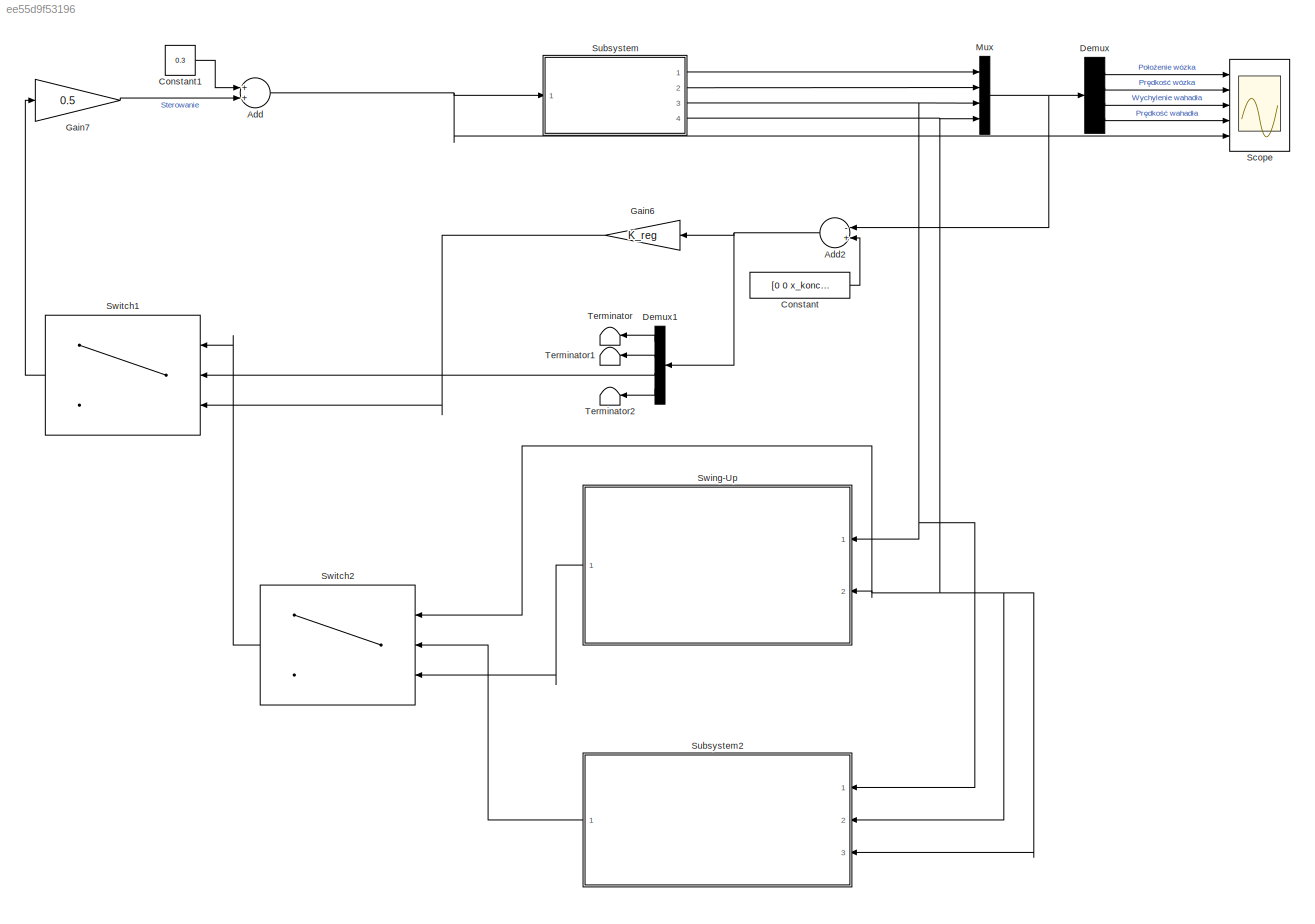
MODEL slx_ee55d9f53196
KIND model
CONFIG AbsTol = auto
CONFIG EnableMultiTasking = off
CONFIG FixedStep = auto
CONFIG MaxStep = auto
CONFIG MinStep = auto
CONFIG RelTol = 1e-3
CONFIG SampleTimeConstraint = Unconstrained
CONFIG Solver = ode45
CONFIG SolverName = ode45
CONFIG StartTime = 0.0
CONFIG StopTime = 15
BLOCK [Sum] Add
  InputSameDT = off
  OutDataTypeStr = Inherit: Inherit via internal rule
  Ports = [2, 1]
  SaturateOnIntegerOverflow = off
BLOCK [Sum] Add2
  InputSameDT = off
  Inputs = -+
  OutDataTypeStr = Inherit: Inherit via internal rule
  Ports = [2, 1]
  SaturateOnIntegerOverflow = off
BLOCK [Constant] Constant
  Value = [0 0 x_konc 0]
BLOCK [Constant] Constant1
  Value = 0.3
BLOCK [Demux] Demux
  DisplayOption = bar
  Ports = [1, 4]
BLOCK [Demux] Demux1
  DisplayOption = bar
  Ports = [1, 4]
BLOCK [Gain] Gain6
  Gain = K_reg
  Multiplication = Matrix(K*u)
  OutDataTypeStr = Inherit: Inherit via internal rule
  ParamDataTypeStr = Inherit: Inherit via internal rule
  SaturateOnIntegerOverflow = off
BLOCK [Gain] Gain7
  Gain = 0.5
  OutDataTypeStr = Inherit: Inherit via internal rule
  ParamDataTypeStr = Inherit: Inherit via internal rule
  SaturateOnIntegerOverflow = off
BLOCK [Mux] Mux
  DisplayOption = bar
  Ports = [4, 1]
BLOCK [Scope] Scope
  Floating = off
  NumInputPorts = 5
  Ports = [5]
  ScopeSpecificationString = Simulink.scopes.TimeScopeBlockCfg('CurrentConfiguration', extmgr.ConfigurationSet(extmgr.Configuration('Core','General UI',true,'FigureColor',[0.156862745098039 0.156862745098039 0.156862745098039]),extmgr.Configuration('Core','Source UI',true),extmgr.Configuration('Sources','WiredSimulink',true,'DataLoggingSaveFormat','StructureWithTime','DataLoggingDecimation','1','DataLoggingDecimateData',true)...<+8670ch>
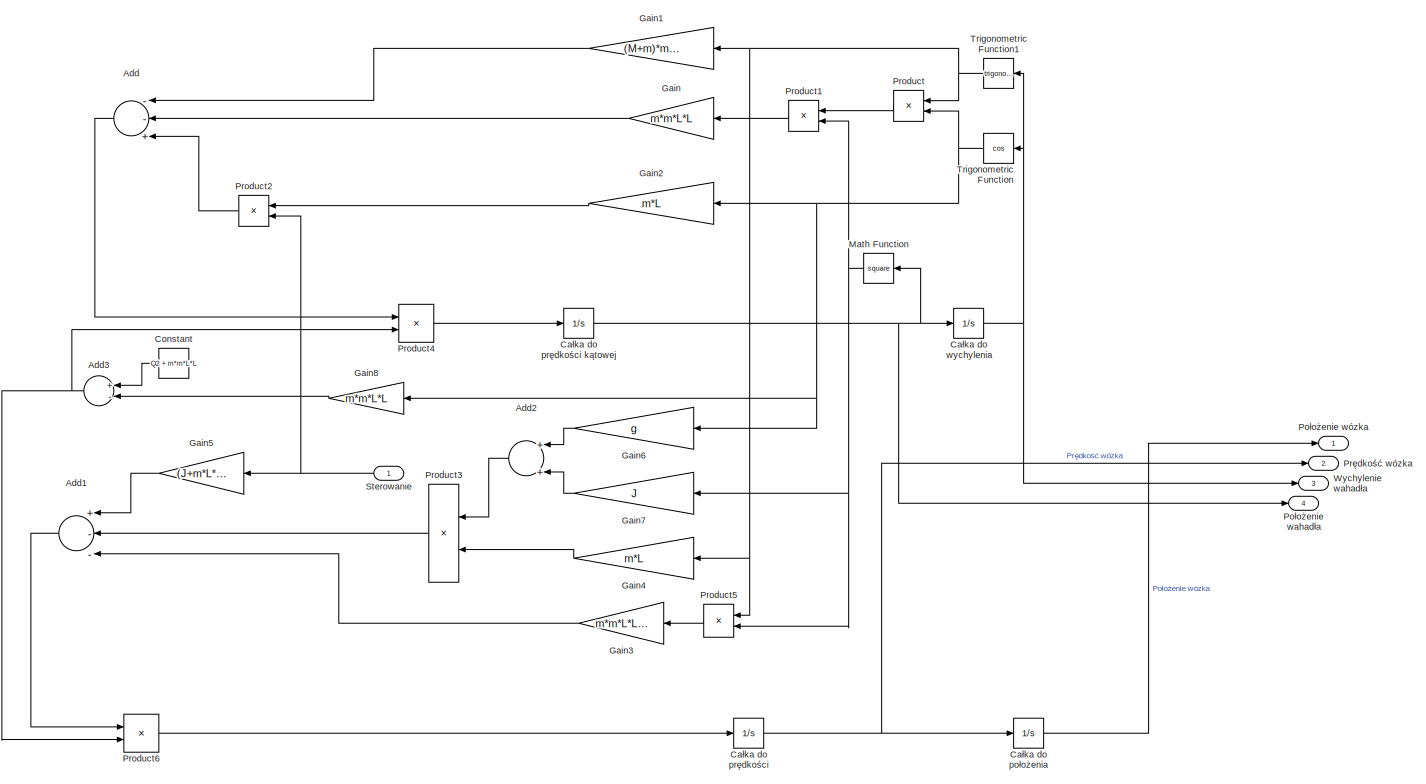
[diagram: Subsystem - part 1/1, most of the canvas]
BLOCK [SubSystem] Subsystem
  Ports = [1, 4]
  RequestExecContextInheritance = off
BLOCK [Sum] Subsystem/Add
  InputSameDT = off
  Inputs = --+
  OutDataTypeStr = Inherit: Inherit via internal rule
  Ports = [3, 1]
  SaturateOnIntegerOverflow = off
BLOCK [Sum] Subsystem/Add1
  InputSameDT = off
  Inputs = +--
  OutDataTypeStr = Inherit: Inherit via internal rule
  Ports = [3, 1]
  SaturateOnIntegerOverflow = off
BLOCK [Sum] Subsystem/Add2
  InputSameDT = off
  OutDataTypeStr = Inherit: Inherit via internal rule
  Ports = [2, 1]
  SaturateOnIntegerOverflow = off
BLOCK [Sum] Subsystem/Add3
  InputSameDT = off
  Inputs = +-
  OutDataTypeStr = Inherit: Inherit via internal rule
  Ports = [2, 1]
  SaturateOnIntegerOverflow = off
BLOCK [Integrator] Subsystem/Całka do położenia
  Ports = [1, 1]
BLOCK [Integrator] Subsystem/Całka do prędkości
  Ports = [1, 1]
BLOCK [Integrator] Subsystem/Całka do prędkości kątowej
  Ports = [1, 1]
BLOCK [Integrator] Subsystem/Całka do wychylenia
  InitialCondition = x_pocz
  Ports = [1, 1]
BLOCK [Constant] Subsystem/Constant
  Value = Q2 + m*m*L*L
BLOCK [Gain] Subsystem/Gain
  Gain = m*m*L*L
  OutDataTypeStr = Inherit: Inherit via internal rule
  ParamDataTypeStr = Inherit: Inherit via internal rule
  SaturateOnIntegerOverflow = off
BLOCK [Gain] Subsystem/Gain1
  Gain = (M+m)*m*g*L
  OutDataTypeStr = Inherit: Inherit via internal rule
  ParamDataTypeStr = Inherit: Inherit via internal rule
  SaturateOnIntegerOverflow = off
BLOCK [Gain] Subsystem/Gain2
  Gain = m*L
  OutDataTypeStr = Inherit: Inherit via internal rule
  ParamDataTypeStr = Inherit: Inherit via internal rule
  SaturateOnIntegerOverflow = off
BLOCK [Gain] Subsystem/Gain3
  Gain = m*m*L*L*L
  OutDataTypeStr = Inherit: Inherit via internal rule
  ParamDataTypeStr = Inherit: Inherit via internal rule
  SaturateOnIntegerOverflow = off
BLOCK [Gain] Subsystem/Gain4
  Gain = m*L
  OutDataTypeStr = Inherit: Inherit via internal rule
  ParamDataTypeStr = Inherit: Inherit via internal rule
  SaturateOnIntegerOverflow = off
BLOCK [Gain] Subsystem/Gain5
  Gain = (J+m*L*L)
  OutDataTypeStr = Inherit: Inherit via internal rule
  ParamDataTypeStr = Inherit: Inherit via internal rule
  SaturateOnIntegerOverflow = off
BLOCK [Gain] Subsystem/Gain6
  Gain = g
  OutDataTypeStr = Inherit: Inherit via internal rule
  ParamDataTypeStr = Inherit: Inherit via internal rule
  SaturateOnIntegerOverflow = off
BLOCK [Gain] Subsystem/Gain7
  Gain = J
  OutDataTypeStr = Inherit: Inherit via internal rule
  ParamDataTypeStr = Inherit: Inherit via internal rule
  SaturateOnIntegerOverflow = off
BLOCK [Gain] Subsystem/Gain8
  Gain = m*m*L*L
  OutDataTypeStr = Inherit: Inherit via internal rule
  ParamDataTypeStr = Inherit: Inherit via internal rule
  SaturateOnIntegerOverflow = off
BLOCK [Math] Subsystem/Math Function
  Operator = square
  Ports = [1, 1]
BLOCK [Outport] Subsystem/Położenie wahadła
  IconDisplay = Port number
  Port = 4
BLOCK [Outport] Subsystem/Położenie wózka
  IconDisplay = Port number
BLOCK [Product] Subsystem/Product
  InputSameDT = off
  OutDataTypeStr = Inherit: Inherit via internal rule
  Ports = [2, 1]
  RndMeth = Floor
  SaturateOnIntegerOverflow = off
BLOCK [Product] Subsystem/Product1
  InputSameDT = off
  OutDataTypeStr = Inherit: Inherit via internal rule
  Ports = [2, 1]
  RndMeth = Floor
  SaturateOnIntegerOverflow = off
BLOCK [Product] Subsystem/Product2
  InputSameDT = off
  OutDataTypeStr = Inherit: Inherit via internal rule
  Ports = [2, 1]
  RndMeth = Floor
  SaturateOnIntegerOverflow = off
BLOCK [Product] Subsystem/Product3
  InputSameDT = off
  OutDataTypeStr = Inherit: Inherit via internal rule
  Ports = [2, 1]
  RndMeth = Floor
  SaturateOnIntegerOverflow = off
BLOCK [Product] Subsystem/Product4
  InputSameDT = off
  Inputs = */
  OutDataTypeStr = Inherit: Inherit via internal rule
  Ports = [2, 1]
  RndMeth = Floor
  SaturateOnIntegerOverflow = off
BLOCK [Product] Subsystem/Product5
  InputSameDT = off
  OutDataTypeStr = Inherit: Inherit via internal rule
  Ports = [2, 1]
  RndMeth = Floor
  SaturateOnIntegerOverflow = off
BLOCK [Product] Subsystem/Product6
  InputSameDT = off
  Inputs = */
  OutDataTypeStr = Inherit: Inherit via internal rule
  Ports = [2, 1]
  RndMeth = Floor
  SaturateOnIntegerOverflow = off
BLOCK [Outport] Subsystem/Prędkość wózka
  IconDisplay = Port number
  Port = 2
BLOCK [Inport] Subsystem/Sterowanie
  IconDisplay = Port number
BLOCK [Trigonometry] Subsystem/Trigonometric Function
  Operator = cos
  Ports = [1, 1]
BLOCK [Trigonometry] Subsystem/Trigonometric Function1
  Ports = [1, 1]
BLOCK [Outport] Subsystem/Wychylenie wahadła
  IconDisplay = Port number
  Port = 3
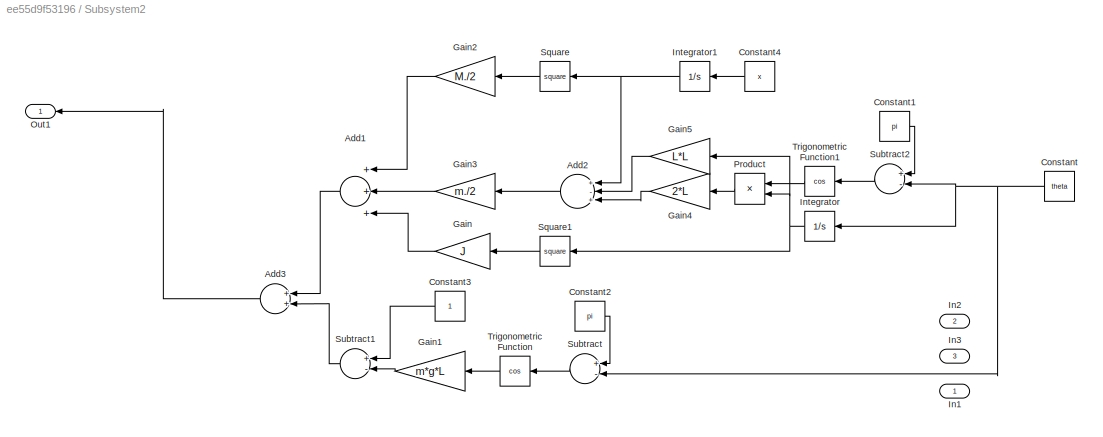
BLOCK [SubSystem] Subsystem2
  Ports = [3, 1]
  RequestExecContextInheritance = off
BLOCK [Sum] Subsystem2/Add1
  InputSameDT = off
  Inputs = +++
  OutDataTypeStr = Inherit: Inherit via internal rule
  Ports = [3, 1]
  SaturateOnIntegerOverflow = off
BLOCK [Sum] Subsystem2/Add2
  InputSameDT = off
  Inputs = +-+
  OutDataTypeStr = Inherit: Inherit via internal rule
  Ports = [3, 1]
  SaturateOnIntegerOverflow = off
BLOCK [Sum] Subsystem2/Add3
  InputSameDT = off
  OutDataTypeStr = Inherit: Inherit via internal rule
  Ports = [2, 1]
  SaturateOnIntegerOverflow = off
BLOCK [Constant] Subsystem2/Constant
  Value = theta
BLOCK [Constant] Subsystem2/Constant1
  Value = pi
BLOCK [Constant] Subsystem2/Constant2
  Value = pi
BLOCK [Constant] Subsystem2/Constant3
BLOCK [Constant] Subsystem2/Constant4
  Value = x
BLOCK [Gain] Subsystem2/Gain
  Gain = J
  OutDataTypeStr = Inherit: Inherit via internal rule
  ParamDataTypeStr = Inherit: Inherit via internal rule
  SaturateOnIntegerOverflow = off
BLOCK [Gain] Subsystem2/Gain1
  Gain = m*g*L
  OutDataTypeStr = Inherit: Inherit via internal rule
  ParamDataTypeStr = Inherit: Inherit via internal rule
  SaturateOnIntegerOverflow = off
BLOCK [Gain] Subsystem2/Gain2
  Gain = M./2
  OutDataTypeStr = Inherit: Inherit via internal rule
  ParamDataTypeStr = Inherit: Inherit via internal rule
  SaturateOnIntegerOverflow = off
BLOCK [Gain] Subsystem2/Gain3
  Gain = m./2
  OutDataTypeStr = Inherit: Inherit via internal rule
  ParamDataTypeStr = Inherit: Inherit via internal rule
  SaturateOnIntegerOverflow = off
BLOCK [Gain] Subsystem2/Gain4
  Gain = 2*L
  OutDataTypeStr = Inherit: Inherit via internal rule
  ParamDataTypeStr = Inherit: Inherit via internal rule
  SaturateOnIntegerOverflow = off
BLOCK [Gain] Subsystem2/Gain5
  Gain = L*L
  OutDataTypeStr = Inherit: Inherit via internal rule
  ParamDataTypeStr = Inherit: Inherit via internal rule
  SaturateOnIntegerOverflow = off
BLOCK [Inport] Subsystem2/In1
  IconDisplay = Port number
BLOCK [Inport] Subsystem2/In2
  IconDisplay = Port number
  Port = 2
BLOCK [Inport] Subsystem2/In3
  IconDisplay = Port number
  Port = 3
BLOCK [Integrator] Subsystem2/Integrator
  Ports = [1, 1]
BLOCK [Integrator] Subsystem2/Integrator1
  Ports = [1, 1]
BLOCK [Outport] Subsystem2/Out1
  IconDisplay = Port number
BLOCK [Product] Subsystem2/Product
  InputSameDT = off
  OutDataTypeStr = Inherit: Inherit via internal rule
  Ports = [2, 1]
  RndMeth = Floor
  SaturateOnIntegerOverflow = off
BLOCK [Math] Subsystem2/Square
  Operator = square
  Ports = [1, 1]
  SignedPower = off
BLOCK [Math] Subsystem2/Square1
  Operator = square
  Ports = [1, 1]
  SignedPower = off
BLOCK [Sum] Subsystem2/Subtract
  InputSameDT = off
  Inputs = +-
  OutDataTypeStr = Inherit: Inherit via internal rule
  Ports = [2, 1]
  SaturateOnIntegerOverflow = off
BLOCK [Sum] Subsystem2/Subtract1
  InputSameDT = off
  Inputs = +-
  OutDataTypeStr = Inherit: Inherit via internal rule
  Ports = [2, 1]
  SaturateOnIntegerOverflow = off
BLOCK [Sum] Subsystem2/Subtract2
  InputSameDT = off
  Inputs = +-
  OutDataTypeStr = Inherit: Inherit via internal rule
  Ports = [2, 1]
  SaturateOnIntegerOverflow = off
BLOCK [Trigonometry] Subsystem2/Trigonometric Function
  Operator = cos
  Ports = [1, 1]
BLOCK [Trigonometry] Subsystem2/Trigonometric Function1
  Operator = cos
  Ports = [1, 1]
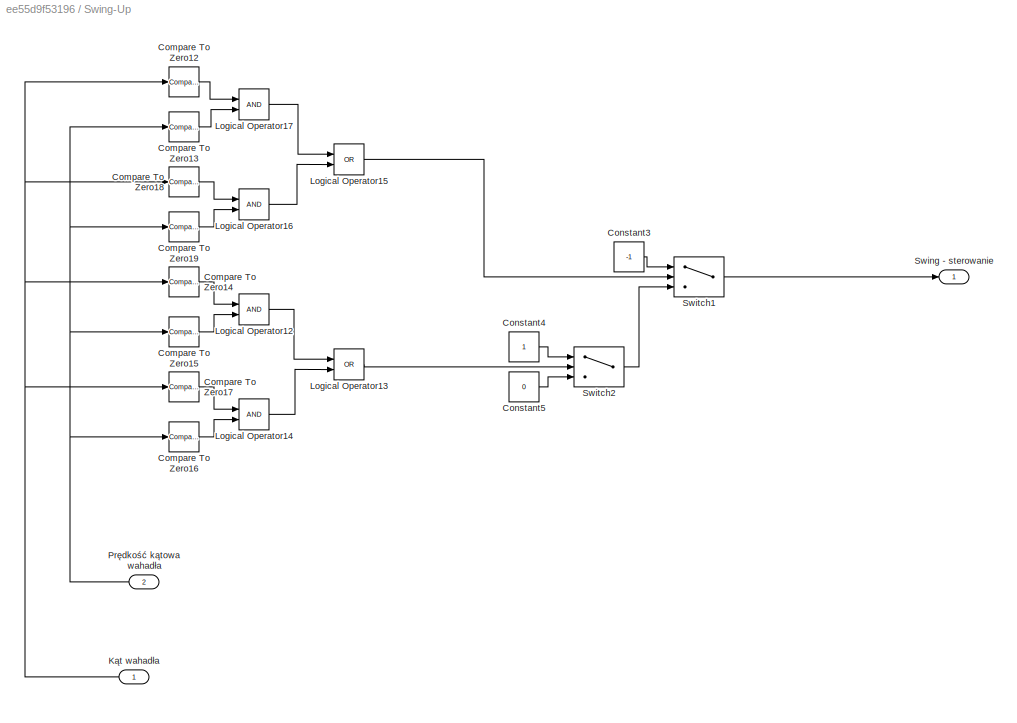
BLOCK [SubSystem] Swing-Up
  Ports = [2, 1]
  RequestExecContextInheritance = off
BLOCK [Reference] Swing-Up/Compare To Zero12  REF=simulink/Logic and Bit
Operations/Compare
To Zero
  Ports = [1, 1]
  SourceBlock = simulink/Logic and Bit\nOperations/Compare\nTo Zero
  SourceProductBaseCode = SL
  SourceProductName = Simulink
  SourceType = Compare To Zero
BLOCK [Reference] Swing-Up/Compare To Zero13  REF=simulink/Logic and Bit
Operations/Compare
To Zero
  Ports = [1, 1]
  SourceBlock = simulink/Logic and Bit\nOperations/Compare\nTo Zero
  SourceProductBaseCode = SL
  SourceProductName = Simulink
  SourceType = Compare To Zero
BLOCK [Reference] Swing-Up/Compare To Zero14  REF=simulink/Logic and Bit
Operations/Compare
To Zero
  Ports = [1, 1]
  SourceBlock = simulink/Logic and Bit\nOperations/Compare\nTo Zero
  SourceProductBaseCode = SL
  SourceProductName = Simulink
  SourceType = Compare To Zero
BLOCK [Reference] Swing-Up/Compare To Zero15  REF=simulink/Logic and Bit
Operations/Compare
To Zero
  Ports = [1, 1]
  SourceBlock = simulink/Logic and Bit\nOperations/Compare\nTo Zero
  SourceProductBaseCode = SL
  SourceProductName = Simulink
  SourceType = Compare To Zero
BLOCK [Reference] Swing-Up/Compare To Zero16  REF=simulink/Logic and Bit
Operations/Compare
To Zero
  Ports = [1, 1]
  SourceBlock = simulink/Logic and Bit\nOperations/Compare\nTo Zero
  SourceProductBaseCode = SL
  SourceProductName = Simulink
  SourceType = Compare To Zero
BLOCK [Reference] Swing-Up/Compare To Zero17  REF=simulink/Logic and Bit
Operations/Compare
To Zero
  Ports = [1, 1]
  SourceBlock = simulink/Logic and Bit\nOperations/Compare\nTo Zero
  SourceProductBaseCode = SL
  SourceProductName = Simulink
  SourceType = Compare To Zero
BLOCK [Reference] Swing-Up/Compare To Zero18  REF=simulink/Logic and Bit
Operations/Compare
To Zero
  Ports = [1, 1]
  SourceBlock = simulink/Logic and Bit\nOperations/Compare\nTo Zero
  SourceProductBaseCode = SL
  SourceProductName = Simulink
  SourceType = Compare To Zero
BLOCK [Reference] Swing-Up/Compare To Zero19  REF=simulink/Logic and Bit
Operations/Compare
To Zero
  Ports = [1, 1]
  SourceBlock = simulink/Logic and Bit\nOperations/Compare\nTo Zero
  SourceProductBaseCode = SL
  SourceProductName = Simulink
  SourceType = Compare To Zero
BLOCK [Constant] Swing-Up/Constant3
  Value = -1
BLOCK [Constant] Swing-Up/Constant4
BLOCK [Constant] Swing-Up/Constant5
  Value = 0
BLOCK [Inport] Swing-Up/Kąt wahadła
  IconDisplay = Port number
BLOCK [Logic] Swing-Up/Logical Operator12
  AllPortsSameDT = off
  OutDataTypeStr = boolean
  Ports = [2, 1]
BLOCK [Logic] Swing-Up/Logical Operator13
  AllPortsSameDT = off
  Operator = OR
  OutDataTypeStr = boolean
  Ports = [2, 1]
BLOCK [Logic] Swing-Up/Logical Operator14
  AllPortsSameDT = off
  OutDataTypeStr = boolean
  Ports = [2, 1]
BLOCK [Logic] Swing-Up/Logical Operator15
  AllPortsSameDT = off
  Operator = OR
  OutDataTypeStr = boolean
  Ports = [2, 1]
BLOCK [Logic] Swing-Up/Logical Operator16
  AllPortsSameDT = off
  OutDataTypeStr = boolean
  Ports = [2, 1]
BLOCK [Logic] Swing-Up/Logical Operator17
  AllPortsSameDT = off
  OutDataTypeStr = boolean
  Ports = [2, 1]
BLOCK [Inport] Swing-Up/Prędkość kątowa wahadła
  IconDisplay = Port number
  Port = 2
BLOCK [Outport] Swing-Up/Swing - sterowanie
  IconDisplay = Port number
BLOCK [Switch] Swing-Up/Switch1
  Criteria = u2 > Threshold
  InputSameDT = off
  SaturateOnIntegerOverflow = off
BLOCK [Switch] Swing-Up/Switch2
  Criteria = u2 ~= 0
  InputSameDT = off
  SaturateOnIntegerOverflow = off
BLOCK [Switch] Switch1
  InputSameDT = off
  SaturateOnIntegerOverflow = off
  Threshold = 0.5
BLOCK [Switch] Switch2
  InputSameDT = off
  SaturateOnIntegerOverflow = off
  Threshold = 1.6
BLOCK [Terminator] Terminator
BLOCK [Terminator] Terminator1
BLOCK [Terminator] Terminator2
NET Add2:1 -> Demux1:1, Gain6:1
NET Add:1 -> Scope:5, Subsystem:1
LINE Constant1:1 -> Add:1
LINE Constant:1 -> Add2:2
LINE Demux1:1 -> Terminator:1
LINE Demux1:2 -> Terminator1:1
LINE Demux1:3 -> Switch1:2
LINE Demux1:4 -> Terminator2:1
LINE Demux:1 -> Scope:1
LINE Demux:2 -> Scope:2
LINE Demux:3 -> Scope:3
LINE Demux:4 -> Scope:4
LINE Gain6:1 -> Switch1:3
LINE Gain7:1 -> Add:2
NET Mux:1 -> Add2:1, Demux:1
LINE Subsystem/Add1:1 -> Subsystem/Product6:1
LINE Subsystem/Add2:1 -> Subsystem/Product3:1
NET Subsystem/Add3:1 -> Subsystem/Product4:2, Subsystem/Product6:2
LINE Subsystem/Add:1 -> Subsystem/Product4:1
LINE Subsystem/Całka do położenia:1 -> Subsystem/Położenie wózka:1
NET Subsystem/Całka do prędkości kątowej:1 -> Subsystem/Całka do wychylenia:1, Subsystem/Math Function:1, Subsystem/Położenie wahadła:1
NET Subsystem/Całka do prędkości:1 -> Subsystem/Całka do położenia:1, Subsystem/Prędkość wózka:1
NET Subsystem/Całka do wychylenia:1 -> Subsystem/Trigonometric Function1:1, Subsystem/Trigonometric Function:1, Subsystem/Wychylenie wahadła:1
LINE Subsystem/Constant:1 -> Subsystem/Add3:1
LINE Subsystem/Gain1:1 -> Subsystem/Add:1
LINE Subsystem/Gain2:1 -> Subsystem/Product2:1
LINE Subsystem/Gain3:1 -> Subsystem/Add1:3
LINE Subsystem/Gain4:1 -> Subsystem/Product3:2
LINE Subsystem/Gain5:1 -> Subsystem/Add1:1
LINE Subsystem/Gain6:1 -> Subsystem/Add2:1
LINE Subsystem/Gain7:1 -> Subsystem/Add2:2
LINE Subsystem/Gain8:1 -> Subsystem/Add3:2
LINE Subsystem/Gain:1 -> Subsystem/Add:2
NET Subsystem/Math Function:1 -> Subsystem/Gain7:1, Subsystem/Product1:2, Subsystem/Product5:2
LINE Subsystem/Product1:1 -> Subsystem/Gain:1
LINE Subsystem/Product2:1 -> Subsystem/Add:3
LINE Subsystem/Product3:1 -> Subsystem/Add1:2
LINE Subsystem/Product4:1 -> Subsystem/Całka do prędkości kątowej:1
LINE Subsystem/Product5:1 -> Subsystem/Gain3:1
LINE Subsystem/Product6:1 -> Subsystem/Całka do prędkości:1
LINE Subsystem/Product:1 -> Subsystem/Product1:1
NET Subsystem/Sterowanie:1 -> Subsystem/Gain5:1, Subsystem/Product2:2
NET Subsystem/Trigonometric Function1:1 -> Subsystem/Gain1:1, Subsystem/Gain4:1, Subsystem/Product5:1, Subsystem/Product:1
NET Subsystem/Trigonometric Function:1 -> Subsystem/Gain2:1, Subsystem/Gain6:1, Subsystem/Gain8:1, Subsystem/Product:2
LINE Subsystem2/Add1:1 -> Subsystem2/Add3:1
LINE Subsystem2/Add2:1 -> Subsystem2/Gain3:1
LINE Subsystem2/Add3:1 -> Subsystem2/Out1:1
LINE Subsystem2/Constant1:1 -> Subsystem2/Subtract2:1
LINE Subsystem2/Constant2:1 -> Subsystem2/Subtract:1
LINE Subsystem2/Constant3:1 -> Subsystem2/Subtract1:1
LINE Subsystem2/Constant4:1 -> Subsystem2/Integrator1:1
NET Subsystem2/Constant:1 -> Subsystem2/Integrator:1, Subsystem2/Subtract2:2, Subsystem2/Subtract:2
LINE Subsystem2/Gain1:1 -> Subsystem2/Subtract1:2
LINE Subsystem2/Gain2:1 -> Subsystem2/Add1:1
LINE Subsystem2/Gain3:1 -> Subsystem2/Add1:2
LINE Subsystem2/Gain4:1 -> Subsystem2/Add2:3
LINE Subsystem2/Gain5:1 -> Subsystem2/Add2:2
LINE Subsystem2/Gain:1 -> Subsystem2/Add1:3
NET Subsystem2/Integrator1:1 -> Subsystem2/Add2:1, Subsystem2/Square:1
NET Subsystem2/Integrator:1 -> Subsystem2/Gain5:1, Subsystem2/Product:2, Subsystem2/Square1:1
LINE Subsystem2/Product:1 -> Subsystem2/Gain4:1
LINE Subsystem2/Square1:1 -> Subsystem2/Gain:1
LINE Subsystem2/Square:1 -> Subsystem2/Gain2:1
LINE Subsystem2/Subtract1:1 -> Subsystem2/Add3:2
LINE Subsystem2/Subtract2:1 -> Subsystem2/Trigonometric Function1:1
LINE Subsystem2/Subtract:1 -> Subsystem2/Trigonometric Function:1
LINE Subsystem2/Trigonometric Function1:1 -> Subsystem2/Product:1
LINE Subsystem2/Trigonometric Function:1 -> Subsystem2/Gain1:1
LINE Subsystem2:1 -> Switch2:2
LINE Subsystem:1 -> Mux:1
LINE Subsystem:2 -> Mux:2
NET Subsystem:3 -> Mux:3, Subsystem2:1, Swing-Up:1
NET Subsystem:4 -> Mux:4, Subsystem2:2, Subsystem2:3, Swing-Up:2, Switch2:1
LINE Swing-Up/Compare To Zero12:1 -> Swing-Up/Logical Operator17:1
LINE Swing-Up/Compare To Zero13:1 -> Swing-Up/Logical Operator17:2
LINE Swing-Up/Compare To Zero14:1 -> Swing-Up/Logical Operator12:1
LINE Swing-Up/Compare To Zero15:1 -> Swing-Up/Logical Operator12:2
LINE Swing-Up/Compare To Zero16:1 -> Swing-Up/Logical Operator14:2
LINE Swing-Up/Compare To Zero17:1 -> Swing-Up/Logical Operator14:1
LINE Swing-Up/Compare To Zero18:1 -> Swing-Up/Logical Operator16:1
LINE Swing-Up/Compare To Zero19:1 -> Swing-Up/Logical Operator16:2
LINE Swing-Up/Constant3:1 -> Swing-Up/Switch1:1
LINE Swing-Up/Constant4:1 -> Swing-Up/Switch2:1
LINE Swing-Up/Constant5:1 -> Swing-Up/Switch2:3
NET Swing-Up/Kąt wahadła:1 -> Swing-Up/Compare To Zero12:1, Swing-Up/Compare To Zero14:1, Swing-Up/Compare To Zero17:1, Swing-Up/Compare To Zero18:1
LINE Swing-Up/Logical Operator12:1 -> Swing-Up/Logical Operator13:1
LINE Swing-Up/Logical Operator13:1 -> Swing-Up/Switch2:2
LINE Swing-Up/Logical Operator14:1 -> Swing-Up/Logical Operator13:2
LINE Swing-Up/Logical Operator15:1 -> Swing-Up/Switch1:2
LINE Swing-Up/Logical Operator16:1 -> Swing-Up/Logical Operator15:2
LINE Swing-Up/Logical Operator17:1 -> Swing-Up/Logical Operator15:1
NET Swing-Up/Prędkość kątowa wahadła:1 -> Swing-Up/Compare To Zero13:1, Swing-Up/Compare To Zero15:1, Swing-Up/Compare To Zero16:1, Swing-Up/Compare To Zero19:1
LINE Swing-Up/Switch1:1 -> Swing-Up/Swing - sterowanie:1
LINE Swing-Up/Switch2:1 -> Swing-Up/Switch1:3
LINE Swing-Up:1 -> Switch2:3
LINE Switch1:1 -> Gain7:1
LINE Switch2:1 -> Switch1:1
note: NET lines group one-source signal fan-out (src -> all destinations, sorted); 1:1 wires keep LINE
